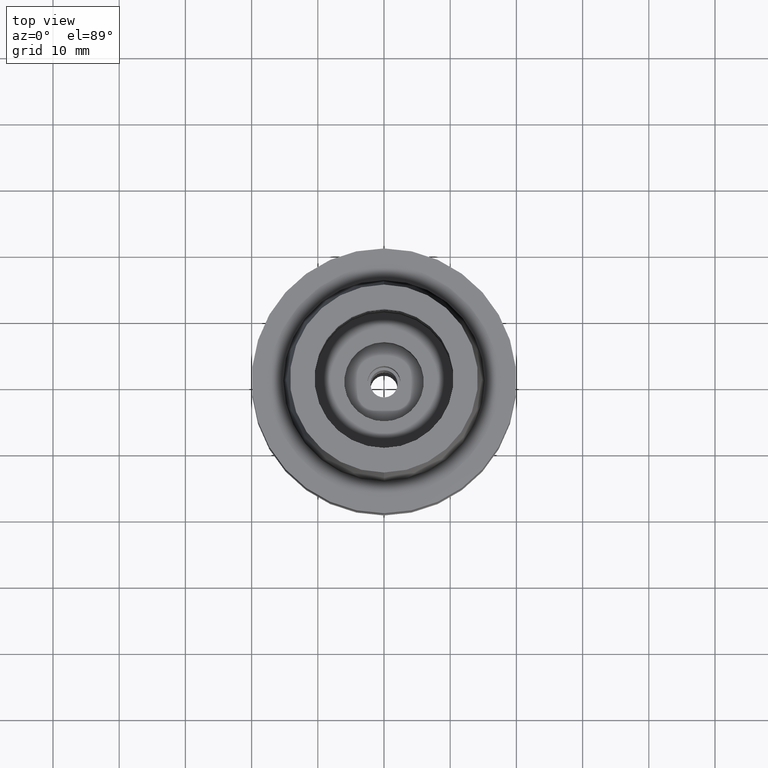
[diagram: clean part render]
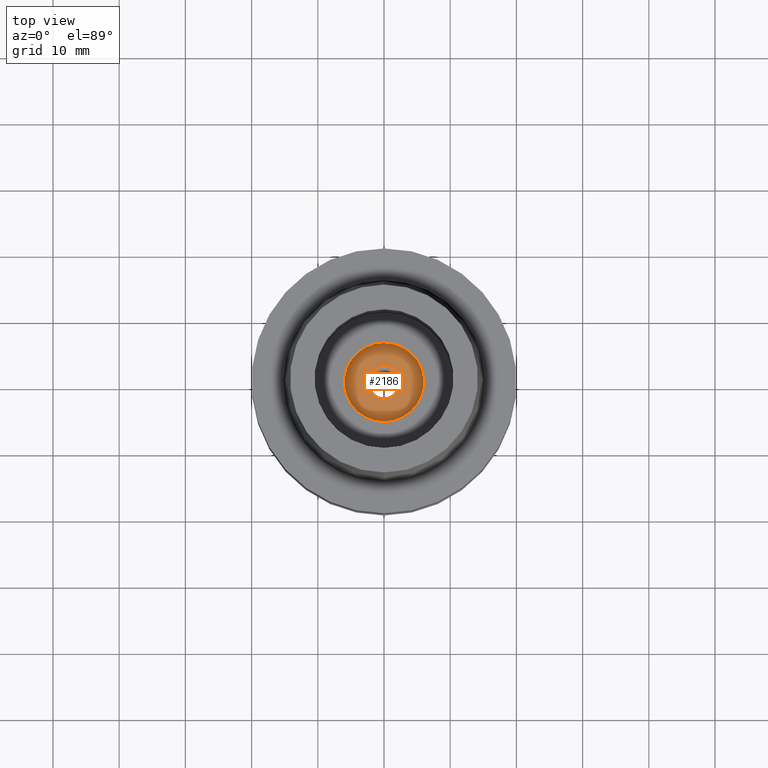
[diagram: same view with one face highlighted and labeled with its STEP entity id]
A machine part, top view. The second image highlights one B-rep face of the part: STEP entity #2186.
In plain terms, the highlighted planar face has unit normal (0, 0, 1).
Its self-contained STEP definition (entity closure, byte-faithful):
#60 = VERTEX_POINT ( 'NONE', #2406 ) ;
#134 = CARTESIAN_POINT ( 'NONE',  ( 0.0000000000000000000, 6.000000000000000000, -15.94999999999999929 ) ) ;
#286 = CARTESIAN_POINT ( 'NONE',  ( 0.0000000000000000000, 0.0000000000000000000, -15.94999999999999929 ) ) ;
#360 = VERTEX_POINT ( 'NONE', #2652 ) ;
#527 = DIRECTION ( 'NONE',  ( 0.0000000000000000000, 0.0000000000000000000, 1.000000000000000000 ) ) ;
#584 = FACE_OUTER_BOUND ( 'NONE', #2049, .T. ) ;
#601 = DIRECTION ( 'NONE',  ( 0.0000000000000000000, -1.000000000000000000, 0.0000000000000000000 ) ) ;
#746 = EDGE_CURVE ( 'NONE', #360, #1758, #1963, .T. ) ;
#887 = CIRCLE ( 'NONE', #2247, 6.000000000000000000 ) ;
#1008 = DIRECTION ( 'NONE',  ( 0.0000000000000000000, 1.000000000000000000, 0.0000000000000000000 ) ) ;
#1135 = AXIS2_PLACEMENT_3D ( 'NONE', #1852, #2452, #601 ) ;
#1189 = FACE_BOUND ( 'NONE', #2624, .T. ) ;
#1240 = ORIENTED_EDGE ( 'NONE', *, *, #746, .F. ) ;
#1246 = ORIENTED_EDGE ( 'NONE', *, *, #2201, .F. ) ;
#1278 = EDGE_CURVE ( 'NONE', #1414, #60, #2667, .T. ) ;
#1291 = AXIS2_PLACEMENT_3D ( 'NONE', #2395, #527, #1930 ) ;
#1338 = AXIS2_PLACEMENT_3D ( 'NONE', #2016, #2657, #1408 ) ;
#1408 = DIRECTION ( 'NONE',  ( 1.000000000000000000, 0.0000000000000000000, 0.0000000000000000000 ) ) ;
#1414 = VERTEX_POINT ( 'NONE', #2556 ) ;
#1615 = PLANE ( 'NONE',  #1338 ) ;
#1758 = VERTEX_POINT ( 'NONE', #134 ) ;
#1769 = DIRECTION ( 'NONE',  ( 0.0000000000000000000, 0.0000000000000000000, 1.000000000000000000 ) ) ;
#1823 = CARTESIAN_POINT ( 'NONE',  ( 0.0000000000000000000, 0.0000000000000000000, -15.94999999999999929 ) ) ;
#1852 = CARTESIAN_POINT ( 'NONE',  ( 0.0000000000000000000, 0.0000000000000000000, -15.94999999999999929 ) ) ;
#1930 = DIRECTION ( 'NONE',  ( 0.0000000000000000000, -1.000000000000000000, 0.0000000000000000000 ) ) ;
#1963 = CIRCLE ( 'NONE', #1135, 6.000000000000000000 ) ;
#2016 = CARTESIAN_POINT ( 'NONE',  ( 0.0000000000000000000, 0.0000000000000000000, -15.94999999999999929 ) ) ;
#2046 = DIRECTION ( 'NONE',  ( 0.0000000000000000000, 0.0000000000000000000, -1.000000000000000000 ) ) ;
#2049 = EDGE_LOOP ( 'NONE', ( #1246, #1240 ) ) ;
#2117 = EDGE_CURVE ( 'NONE', #60, #1414, #2453, .T. ) ;
#2186 = ADVANCED_FACE ( 'NONE', ( #584, #1189 ), #1615, .T. ) ;
#2201 = EDGE_CURVE ( 'NONE', #1758, #360, #887, .T. ) ;
#2247 = AXIS2_PLACEMENT_3D ( 'NONE', #1823, #2046, #1008 ) ;
#2306 = ORIENTED_EDGE ( 'NONE', *, *, #2117, .F. ) ;
#2395 = CARTESIAN_POINT ( 'NONE',  ( 0.0000000000000000000, 0.0000000000000000000, -15.94999999999999929 ) ) ;
#2406 = CARTESIAN_POINT ( 'NONE',  ( 0.0000000000000000000, -2.500000000000000000, -15.94999999999999929 ) ) ;
#2452 = DIRECTION ( 'NONE',  ( 0.0000000000000000000, 0.0000000000000000000, -1.000000000000000000 ) ) ;
#2453 = CIRCLE ( 'NONE', #1291, 2.500000000000000000 ) ;
#2534 = AXIS2_PLACEMENT_3D ( 'NONE', #286, #1769, #2578 ) ;
#2541 = ORIENTED_EDGE ( 'NONE', *, *, #1278, .F. ) ;
#2556 = CARTESIAN_POINT ( 'NONE',  ( 0.0000000000000000000, 2.500000000000000000, -15.94999999999999929 ) ) ;
#2578 = DIRECTION ( 'NONE',  ( 0.0000000000000000000, 1.000000000000000000, 0.0000000000000000000 ) ) ;
#2624 = EDGE_LOOP ( 'NONE', ( #2541, #2306 ) ) ;
#2652 = CARTESIAN_POINT ( 'NONE',  ( 0.0000000000000000000, -6.000000000000000000, -15.94999999999999929 ) ) ;
#2657 = DIRECTION ( 'NONE',  ( 0.0000000000000000000, 0.0000000000000000000, 1.000000000000000000 ) ) ;
#2667 = CIRCLE ( 'NONE', #2534, 2.500000000000000000 ) ;